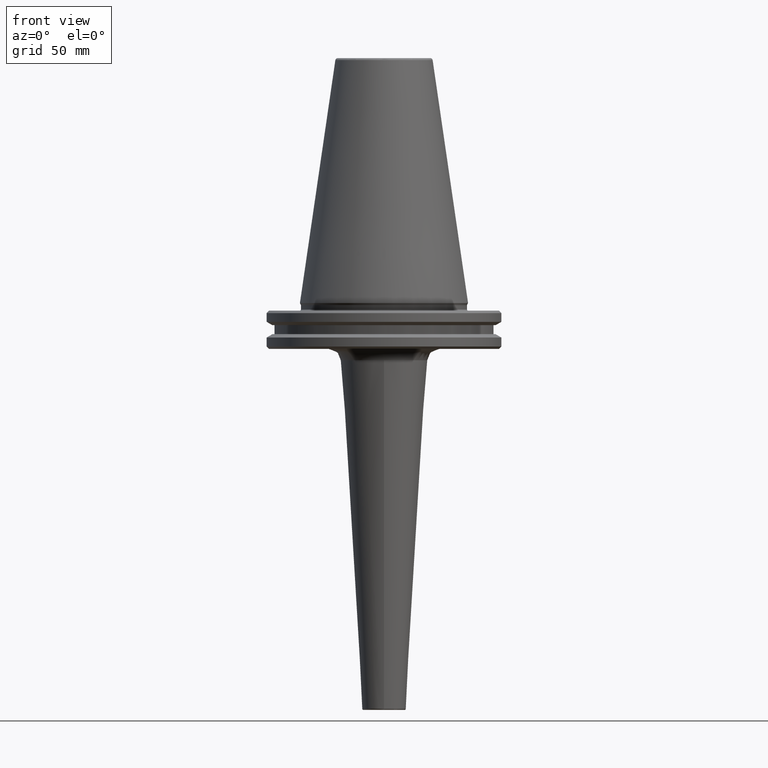
[diagram: clean part render]
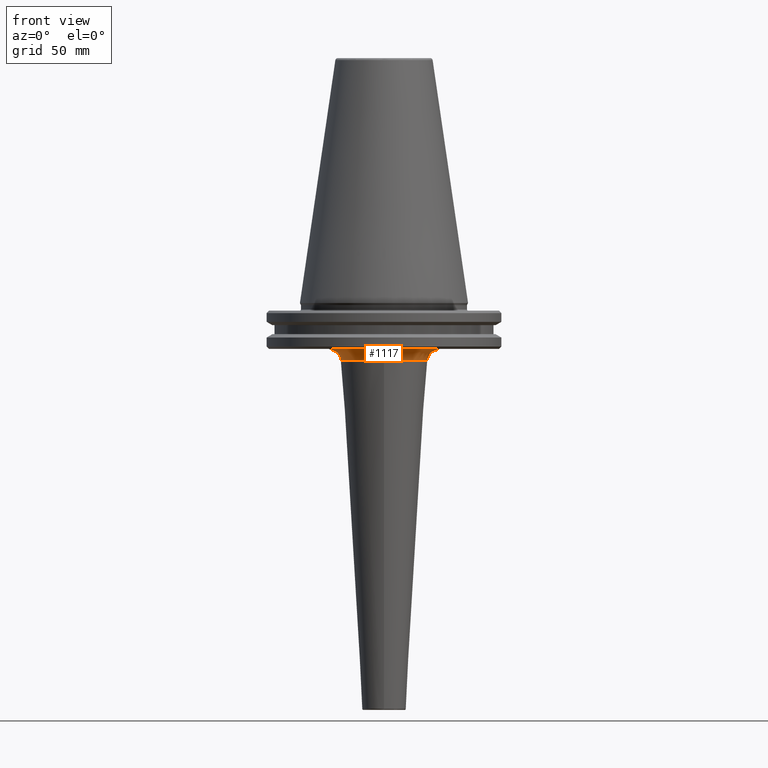
[diagram: same view with one face highlighted and labeled with its STEP entity id]
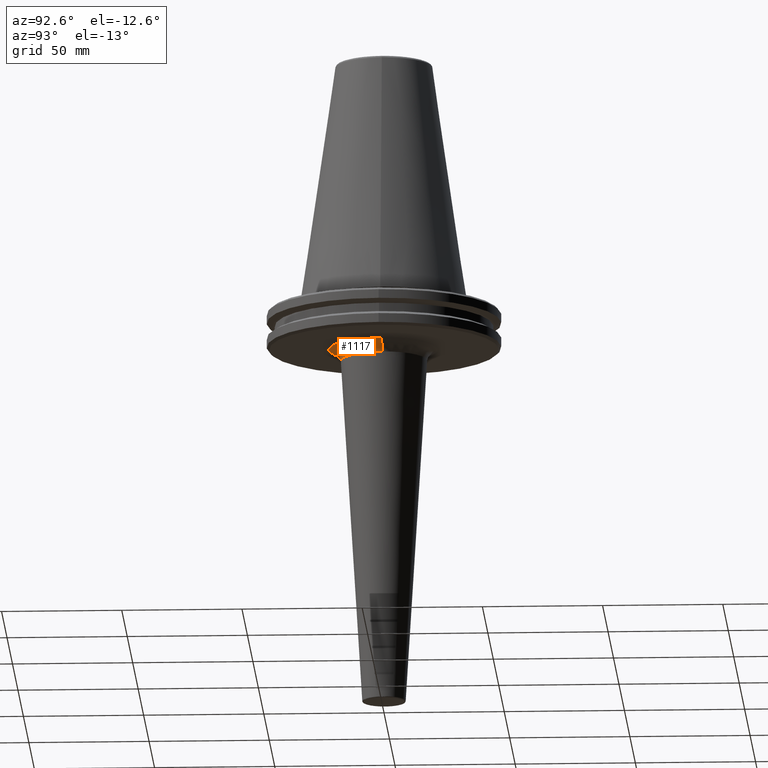
[diagram: same view with one face highlighted and labeled with its STEP entity id]
A machine part, front view. The second image highlights one B-rep face of the part: STEP entity #1117.
A second angle (auxiliary view) of the same face is appended — the face is thin or edge-on in the first view.
In plain terms, the highlighted face is a freeform B-spline surface patch.
Its self-contained STEP definition (entity closure, byte-faithful):
#10 = VERTEX_POINT ( 'NONE', #586 ) ;
#61 = CARTESIAN_POINT ( 'NONE',  ( -17.96064450554360500, -4.399089160867495000E-015, -23.79225126145506100 ) ) ;
#63 = VERTEX_POINT ( 'NONE', #1027 ) ;
#65 = CARTESIAN_POINT ( 'NONE',  ( -17.96064450554359500, -35.92128901108721100, -23.79225126145506100 ) ) ;
#68 = CARTESIAN_POINT ( 'NONE',  ( 17.96064450554360900, -35.92128901108720400, -23.79225126145506100 ) ) ;
#73 = CARTESIAN_POINT ( 'NONE',  ( 17.96064450554360500, 2.199544580433747500E-015, -23.79225126145506100 ) ) ;
#83 = CARTESIAN_POINT ( 'NONE',  ( -18.13223631604952100, -4.441117033166689200E-015, -21.00968136135912400 ) ) ;
#86 = AXIS2_PLACEMENT_3D ( 'NONE', #1315, #1158, #1414 ) ;
#88 = CARTESIAN_POINT ( 'NONE',  ( -18.13223631604951400, -36.26447263209904300, -21.00968136135912400 ) ) ;
#91 = CARTESIAN_POINT ( 'NONE',  ( 18.13223631604952500, -36.26447263209904300, -21.00968136135912400 ) ) ;
#93 = CARTESIAN_POINT ( 'NONE',  ( 18.13223631604952100, 2.220558516583344600E-015, -21.00968136135912400 ) ) ;
#100 = CARTESIAN_POINT ( 'NONE',  ( -20.16330896281285600, -4.938586356305580100E-015, -19.10000000000001200 ) ) ;
#102 = ORIENTED_EDGE ( 'NONE', *, *, #1303, .F. ) ;
#104 = CARTESIAN_POINT ( 'NONE',  ( -20.16330896281284900, -40.32661792562572600, -19.10000000000001200 ) ) ;
#107 = CARTESIAN_POINT ( 'NONE',  ( 20.16330896281286300, -40.32661792562570500, -19.10000000000001200 ) ) ;
#110 = CARTESIAN_POINT ( 'NONE',  ( 20.16330896281285600, 2.469293178152790000E-015, -19.10000000000001200 ) ) ;
#111 = CARTESIAN_POINT ( 'NONE',  ( -22.95116459005624100, -5.621414050383289400E-015, -19.10000000000000900 ) ) ;
#113 = CARTESIAN_POINT ( 'NONE',  ( -22.95116459005623000, -45.90232918011248100, -19.10000000000000900 ) ) ;
#117 = CARTESIAN_POINT ( 'NONE',  ( 22.95116459005624100, 2.810707025191644700E-015, -19.10000000000000900 ) ) ;
#124 = CARTESIAN_POINT ( 'NONE',  ( -17.96064450554360500, 0.0000000000000000000, -23.79225126145506100 ) ) ;
#125 = EDGE_CURVE ( 'NONE', #63, #1118, #417, .T. ) ;
#171 = FACE_OUTER_BOUND ( 'NONE', #1338, .T. ) ;
#256 =( BOUNDED_SURFACE ( )  B_SPLINE_SURFACE ( 3, 3, ( 
 ( #117, #589, #113, #111 ),
 ( #110, #107, #104, #100 ),
 ( #93, #91, #88, #83 ),
 ( #73, #68, #65, #61 ) ),
 .UNSPECIFIED., .F., .F., .F. ) 
 B_SPLINE_SURFACE_WITH_KNOTS ( ( 4, 4 ),
 ( 4, 4 ),
 ( 0.0000000000000000000, 1.000000000000000000 ),
 ( 0.0000000000000000000, 1.000000000000000000 ),
 .UNSPECIFIED. ) 
 GEOMETRIC_REPRESENTATION_ITEM ( )  RATIONAL_B_SPLINE_SURFACE ( (
 ( 1.000000000000000000, 0.3333333333333334300, 0.3333333333333334300, 1.000000000000000000),
 ( 0.8190286534006890900, 0.2730095511335631200, 0.2730095511335631200, 0.8190286534006890900),
 ( 0.8190286534006890900, 0.2730095511335631200, 0.2730095511335631200, 0.8190286534006890900),
 ( 1.000000000000000000, 0.3333333333333334300, 0.3333333333333334300, 1.000000000000000000) ) ) 
 REPRESENTATION_ITEM ( '' )  SURFACE ( )  );
#262 = EDGE_CURVE ( 'NONE', #1044, #1118, #708, .T. ) ;
#355 = CARTESIAN_POINT ( 'NONE',  ( 18.82368421279510400, -13.13378210870481200, -19.10000000000000900 ) ) ;
#368 = DIRECTION ( 'NONE',  ( 1.224646799147353200E-016, -1.000000000000000000, 0.0000000000000000000 ) ) ;
#417 = CIRCLE ( 'NONE', #644, 17.96064450554360500 ) ;
#432 = CARTESIAN_POINT ( 'NONE',  ( 21.26765401825243600, -8.628171966043813900, -19.10000000000000500 ) ) ;
#436 = CARTESIAN_POINT ( 'NONE',  ( 21.21288987432805200, -8.762778658821693200, -19.10000000000000900 ) ) ;
#441 = CARTESIAN_POINT ( 'NONE',  ( 21.08226123616082100, -9.075378606600635200, -19.10000000000000500 ) ) ;
#449 = AXIS2_PLACEMENT_3D ( 'NONE', #588, #368, #1040 ) ;
#457 = CARTESIAN_POINT ( 'NONE',  ( 22.30061106612713900, -5.448608081786472800, -19.10000000000000500 ) ) ;
#460 = CARTESIAN_POINT ( 'NONE',  ( 21.97264827199365900, -6.703377456493108800, -19.10000000000000100 ) ) ;
#461 = CARTESIAN_POINT ( 'NONE',  ( 21.61366093887734900, -7.756297966707802700, -19.10000000000000500 ) ) ;
#467 = CARTESIAN_POINT ( 'NONE',  ( 20.80962141711831800, -9.694649160680747000, -19.10000000000000500 ) ) ;
#478 = CARTESIAN_POINT ( 'NONE',  ( 21.30389243461373300, -8.538292996061470000, -19.10000000000000500 ) ) ;
#481 = CARTESIAN_POINT ( 'NONE',  ( 21.32260329363730700, -8.491446282456975000, -19.10000000000000500 ) ) ;
#484 = CARTESIAN_POINT ( 'NONE',  ( 12.23304086201432200, -19.41955077818169800, -19.10000000000000500 ) ) ;
#493 = CARTESIAN_POINT ( 'NONE',  ( 12.39649085263057100, -19.31560118635363200, -19.10000000000001200 ) ) ;
#504 = CARTESIAN_POINT ( 'NONE',  ( 22.53789176660468700, -4.336268098486404400, -19.10000000000000100 ) ) ;
#511 = CARTESIAN_POINT ( 'NONE',  ( 22.50683376621586300, -4.495997626411086600, -19.10000000000000900 ) ) ;
#520 = CARTESIAN_POINT ( 'NONE',  ( 22.44187852290166400, -4.814632866235773400, -19.10000000000000900 ) ) ;
#525 = CARTESIAN_POINT ( 'NONE',  ( 22.56401208992675600, -4.197829468767965400, -19.10000000000000900 ) ) ;
#526 = CARTESIAN_POINT ( 'NONE',  ( 22.55950144398814000, -4.222008853868542700, -19.10000000000000500 ) ) ;
#535 = ORIENTED_EDGE ( 'NONE', *, *, #1484, .F. ) ;
#542 = CARTESIAN_POINT ( 'NONE',  ( 22.55089813364243100, -4.267724320516039800, -19.10000000000000100 ) ) ;
#557 = CARTESIAN_POINT ( 'NONE',  ( 22.95116459005624100, 2.810707025191644700E-015, -19.10000000000000500 ) ) ;
#560 = CARTESIAN_POINT ( 'NONE',  ( 22.95116459005624400, -1.403983749754345300, -19.10000000000000100 ) ) ;
#565 = CARTESIAN_POINT ( 'NONE',  ( 17.58169013075478700, -14.79011342238108100, -19.10000000000000500 ) ) ;
#567 = CARTESIAN_POINT ( 'NONE',  ( 22.82344417764239000, -2.796071738161106000, -19.10000000000000900 ) ) ;
#569 = CARTESIAN_POINT ( 'NONE',  ( 18.42351643596050400, -13.69717782439002100, -19.10000000000000900 ) ) ;
#583 = CARTESIAN_POINT ( 'NONE',  ( 19.10112140129457000, -12.72450482169813300, -19.10000000000000900 ) ) ;
#586 = CARTESIAN_POINT ( 'NONE',  ( 22.95116459005624100, 2.810707025191644700E-015, -19.10000000000000500 ) ) ;
#588 = CARTESIAN_POINT ( 'NONE',  ( 22.95116459005624100, 2.810707025191644700E-015, -24.10000000000000900 ) ) ;
#589 = CARTESIAN_POINT ( 'NONE',  ( 22.95116459005624400, -45.90232918011247400, -19.10000000000000900 ) ) ;
#598 = CARTESIAN_POINT ( 'NONE',  ( -22.90326943540104300, -1.750207678794178700, -19.10000000000000900 ) ) ;
#605 = CARTESIAN_POINT ( 'NONE',  ( -22.76357523432338300, -2.965760245328614700, -19.10000000000000500 ) ) ;
#606 = CARTESIAN_POINT ( 'NONE',  ( -6.703377456441685900, -21.97264827200558900, -19.10000000000000500 ) ) ;
#618 = DIRECTION ( 'NONE',  ( -1.000000000000000000, 0.0000000000000000000, 0.0000000000000000000 ) ) ;
#623 = CARTESIAN_POINT ( 'NONE',  ( -22.95116459005624100, 0.0000000000000000000, -19.10000000000000500 ) ) ;
#625 = CARTESIAN_POINT ( 'NONE',  ( 8.361633616810623300, -21.37384315560055700, -19.10000000000000100 ) ) ;
#627 = DIRECTION ( 'NONE',  ( 0.0000000000000000000, 0.0000000000000000000, -1.000000000000000000 ) ) ;
#635 = CARTESIAN_POINT ( 'NONE',  ( 0.0000000000000000000, 0.0000000000000000000, -23.79225126145506100 ) ) ;
#644 = AXIS2_PLACEMENT_3D ( 'NONE', #837, #867, #880 ) ;
#649 = CARTESIAN_POINT ( 'NONE',  ( 17.96064450554360500, 2.505125802812696300E-015, -23.79225126145506100 ) ) ;
#684 = CARTESIAN_POINT ( 'NONE',  ( 15.10877690595455800, -17.34901876925437800, -19.10000000000000900 ) ) ;
#695 = CARTESIAN_POINT ( 'NONE',  ( 16.78899772365872100, -15.66887679200882700, -19.10000000000000900 ) ) ;
#699 = CARTESIAN_POINT ( 'NONE',  ( 12.47623258490453000, -19.26419666505740800, -19.10000000000000900 ) ) ;
#703 = CARTESIAN_POINT ( 'NONE',  ( -17.34901876925783200, -15.10877690595112100, -19.10000000000000900 ) ) ;
#706 = CARTESIAN_POINT ( 'NONE',  ( -14.79011342237806100, -17.58169013075780600, -19.10000000000000100 ) ) ;
#708 = CIRCLE ( 'NONE', #86, 5.000000000000000900 ) ;
#711 = CARTESIAN_POINT ( 'NONE',  ( 13.88499760037783100, -18.34322292407961900, -19.10000000000001200 ) ) ;
#720 = ORIENTED_EDGE ( 'NONE', *, *, #125, .F. ) ;
#721 = CARTESIAN_POINT ( 'NONE',  ( 11.40711371938972000, -19.92245689810569700, -19.10000000000000500 ) ) ;
#726 = CARTESIAN_POINT ( 'NONE',  ( -4.336268098480179100, -22.53789176660613300, -19.10000000000000900 ) ) ;
#730 = CARTESIAN_POINT ( 'NONE',  ( -22.43261073815926200, -4.908002801507544500, -19.10000000000000100 ) ) ;
#735 = CARTESIAN_POINT ( 'NONE',  ( -22.17753139951493700, -5.990799216055996200, -19.10000000000000500 ) ) ;
#738 = CARTESIAN_POINT ( 'NONE',  ( -22.58381249565984900, -4.089965642567158000, -19.09999999999999800 ) ) ;
#746 = CARTESIAN_POINT ( 'NONE',  ( -21.78895560860612700, -7.228140979901266600, -19.10000000000000100 ) ) ;
#751 = CARTESIAN_POINT ( 'NONE',  ( 18.99073925091672500, -12.88869939126336000, -19.09999999999999800 ) ) ;
#752 = CARTESIAN_POINT ( 'NONE',  ( -21.57192190586245700, -7.840331681875263700, -19.10000000000000500 ) ) ;
#764 = CARTESIAN_POINT ( 'NONE',  ( -22.59550564865184100, -4.025227109034505100, -19.10000000000000900 ) ) ;
#770 = CARTESIAN_POINT ( 'NONE',  ( -22.57223437202267400, -4.153397126586185100, -19.10000000000000900 ) ) ;
#774 = CARTESIAN_POINT ( 'NONE',  ( -22.57595469684924400, -4.133119030048777500, -19.10000000000000900 ) ) ;
#780 = CARTESIAN_POINT ( 'NONE',  ( 19.15698052161579700, -12.64022724778925700, -19.10000000000000500 ) ) ;
#796 = CARTESIAN_POINT ( 'NONE',  ( -22.95116459005624100, 0.0000000000000000000, -19.10000000000000500 ) ) ;
#809 = CARTESIAN_POINT ( 'NONE',  ( 1.750054318611656600, -22.90329781142991900, -19.10000000000000500 ) ) ;
#812 = CARTESIAN_POINT ( 'NONE',  ( 0.7017264702623596800, -22.95118080492989100, -19.10000000000000500 ) ) ;
#833 = CARTESIAN_POINT ( 'NONE',  ( -1.403452940524733100, -22.95113216030894800, -19.10000000000000900 ) ) ;
#837 = CARTESIAN_POINT ( 'NONE',  ( 0.0000000000000000000, 0.0000000000000000000, -23.79225126145506100 ) ) ;
#842 = CARTESIAN_POINT ( 'NONE',  ( -22.62213485573227700, -3.874111364620044900, -19.10000000000000500 ) ) ;
#844 = CARTESIAN_POINT ( 'NONE',  ( -2.796247050002423200, -22.82341173157867300, -19.10000000000000500 ) ) ;
#849 = CARTESIAN_POINT ( 'NONE',  ( -4.197826729520444100, -22.56401259689650400, -19.10000000000000900 ) ) ;
#851 = CARTESIAN_POINT ( 'NONE',  ( -21.45771860266830800, -8.144806987875096400, -19.10000000000000500 ) ) ;
#859 = CARTESIAN_POINT ( 'NONE',  ( 2.965645225191724200, -22.76359651634505700, -19.10000000000000500 ) ) ;
#866 = CARTESIAN_POINT ( 'NONE',  ( 3.571576116024900200, -22.67278641813555900, -19.10000000000000900 ) ) ;
#867 = DIRECTION ( 'NONE',  ( 0.0000000000000000000, 0.0000000000000000000, -1.000000000000000000 ) ) ;
#872 = CARTESIAN_POINT ( 'NONE',  ( 19.63435147913140400, -11.91009205472434300, -19.10000000000000500 ) ) ;
#874 = CARTESIAN_POINT ( 'NONE',  ( -21.05431439692344500, -9.169180467967418500, -19.10000000000000500 ) ) ;
#880 = DIRECTION ( 'NONE',  ( -1.000000000000000000, 0.0000000000000000000, 0.0000000000000000000 ) ) ;
#882 = CARTESIAN_POINT ( 'NONE',  ( 3.874075420827265000, -22.62214150636404100, -19.09999999999999800 ) ) ;
#889 = CARTESIAN_POINT ( 'NONE',  ( 4.025208538074901200, -22.59550908481159600, -19.10000000000000500 ) ) ;
#895 = CARTESIAN_POINT ( 'NONE',  ( 4.089954902219552000, -22.58381448293197400, -19.10000000000000500 ) ) ;
#904 = CARTESIAN_POINT ( 'NONE',  ( 4.133113595689628100, -22.57595570236143000, -19.10000000000000500 ) ) ;
#908 = CARTESIAN_POINT ( 'NONE',  ( -20.57404412186219400, -10.22377647744823300, -19.10000000000000500 ) ) ;
#910 = CARTESIAN_POINT ( 'NONE',  ( 4.153397126585704600, -22.57223437202291200, -19.10000000000000100 ) ) ;
#915 = CIRCLE ( 'NONE', #1376, 17.96064450554360500 ) ;
#925 = CARTESIAN_POINT ( 'NONE',  ( 20.21881160820118200, -10.90947290292986000, -19.10000000000000500 ) ) ;
#927 = CARTESIAN_POINT ( 'NONE',  ( 4.908002801522822100, -22.43261073815126100, -19.10000000000000500 ) ) ;
#934 = CARTESIAN_POINT ( 'NONE',  ( 5.990799216082736600, -22.17753139950092500, -19.10000000000000500 ) ) ;
#945 = CARTESIAN_POINT ( 'NONE',  ( -19.26419666505597000, -12.47623258490597000, -19.10000000000000500 ) ) ;
#949 = CARTESIAN_POINT ( 'NONE',  ( -12.88869939126257900, -18.99073925091753900, -19.10000000000000500 ) ) ;
#951 = CARTESIAN_POINT ( 'NONE',  ( -12.72450482169772100, -19.10112140129499300, -19.10000000000000500 ) ) ;
#957 = CARTESIAN_POINT ( 'NONE',  ( -19.92245689810674800, -11.40711371938032300, -19.10000000000000500 ) ) ;
#959 = CARTESIAN_POINT ( 'NONE',  ( -12.64022724779198200, -19.15698052161410200, -19.10000000000000500 ) ) ;
#982 = CARTESIAN_POINT ( 'NONE',  ( -18.34322292410253800, -13.88499760035491100, -19.10000000000000500 ) ) ;
#983 = CARTESIAN_POINT ( 'NONE',  ( -11.91009205470261100, -19.63435147914503900, -19.10000000000000500 ) ) ;
#986 = CARTESIAN_POINT ( 'NONE',  ( -10.90947290289181700, -20.21881160822505300, -19.10000000000000900 ) ) ;
#992 = B_SPLINE_CURVE_WITH_KNOTS ( 'NONE', 3,
 ( #796, #1278, #598, #605, #1505, #842, #764, #738, #774, #770, #730, #735, #746, #752, #851, #1029, #1042, #1015, #874, #908, #957, #1067, #1083, #1397, #945, #982, #703, #1213, #706, #1210, #1217, #949, #951, #959, #983, #986, #1001, #1006, #1023, #1046, #1056, #1078, #1093, #606, #1104, #1137, #1154, #726, #1176, #1196, #849, #844, #833, #812, #809, #859, #866, #882, #889, #895, #904, #910, #927, #934, #1493, #1427, #1310, #1294, #625, #1512, #1521, #1533, #721, #1426, #484, #493, #699, #711, #684, #695, #565, #569, #355, #751, #583, #780, #872, #925, #467, #441, #436, #432, #478, #481, #461, #460, #457, #520, #511, #504, #542, #526, #525, #567, #560, #557 ),
 .UNSPECIFIED., .F., .F.,
 ( 4, 1, 1, 1, 1, 1, 2, 2, 1, 1, 1, 1, 2, 2, 1, 1, 1, 2, 2, 2, 1, 1, 1, 2, 2, 1, 1, 1, 1, 2, 2, 1, 1, 1, 1, 1, 2, 2, 2, 1, 1, 1, 1, 1, 2, 2, 1, 1, 1, 1, 2, 2, 1, 1, 1, 2, 2, 2, 1, 1, 1, 2, 2, 1, 1, 1, 1, 2, 2, 1, 1, 1, 1, 1, 2, 2, 4 ),
 ( 0.0000000000000000000, 0.03125000000000020800, 0.04687500000000031200, 0.05468750000000034000, 0.05859375000000034700, 0.06054687500000033300, 0.06152343750000036100, 0.06250000000000038900, 0.09375000000000167900, 0.1093750000000023300, 0.1171875000000026400, 0.1210937500000027300, 0.1230468750000027200, 0.1250000000000027200, 0.1562500000000020500, 0.1718750000000016900, 0.1796875000000015300, 0.1835937500000014700, 0.1875000000000014200, 0.2500000000000012800, 0.2812500000000013300, 0.2968750000000013300, 0.3046875000000013300, 0.3085937500000013300, 0.3125000000000013300, 0.3437500000000013300, 0.3593750000000013900, 0.3671875000000013900, 0.3710937500000014400, 0.3730468750000014400, 0.3750000000000014400, 0.4062500000000007800, 0.4218750000000004400, 0.4296875000000002800, 0.4335937500000001700, 0.4355468750000001700, 0.4365234375000001100, 0.4375000000000000600, 0.4999999999999975600, 0.5312499999999963400, 0.5468749999999956700, 0.5546874999999953400, 0.5585937499999952300, 0.5605468749999951200, 0.5615234374999951200, 0.5624999999999951200, 0.5937499999999957800, 0.6093749999999961100, 0.6171874999999962300, 0.6210937499999962300, 0.6230468749999962300, 0.6249999999999962300, 0.6562499999999968900, 0.6718749999999972200, 0.6796874999999974500, 0.6835937499999975600, 0.6874999999999976700, 0.7499999999999995600, 0.7812500000000005600, 0.7968750000000010000, 0.8046875000000011100, 0.8085937500000013300, 0.8125000000000014400, 0.8437500000000021100, 0.8593750000000024400, 0.8671875000000025500, 0.8710937500000025500, 0.8730468750000025500, 0.8750000000000025500, 0.9062500000000011100, 0.9218750000000003300, 0.9296875000000000000, 0.9335937499999997800, 0.9355468749999996700, 0.9365234374999996700, 0.9374999999999996700, 1.000000000000000000 ),
 .UNSPECIFIED. ) ;
#1001 = CARTESIAN_POINT ( 'NONE',  ( -9.694649160652220500, -20.80962141713622100, -19.10000000000000900 ) ) ;
#1006 = CARTESIAN_POINT ( 'NONE',  ( -9.075378606583990800, -21.08226123617125900, -19.10000000000000100 ) ) ;
#1015 = CARTESIAN_POINT ( 'NONE',  ( -21.35756245250942700, -8.403141126128245400, -19.10000000000000900 ) ) ;
#1023 = CARTESIAN_POINT ( 'NONE',  ( -8.762778658812779400, -21.21288987433363700, -19.10000000000000100 ) ) ;
#1027 = CARTESIAN_POINT ( 'NONE',  ( 0.0000000000000000000, -17.96064450554360500, -23.79225126145506100 ) ) ;
#1029 = CARTESIAN_POINT ( 'NONE',  ( -21.40755580448030700, -8.274949252234920400, -19.09999999999999800 ) ) ;
#1039 = VERTEX_POINT ( 'NONE', #649 ) ;
#1040 = DIRECTION ( 'NONE',  ( 1.000000000000000000, 1.224646799147353500E-016, 0.0000000000000000000 ) ) ;
#1042 = CARTESIAN_POINT ( 'NONE',  ( -21.37384315560154800, -8.361633616808749300, -19.10000000000000100 ) ) ;
#1044 = VERTEX_POINT ( 'NONE', #623 ) ;
#1046 = CARTESIAN_POINT ( 'NONE',  ( -8.628171966038591400, -21.26765401825571200, -19.10000000000000500 ) ) ;
#1056 = CARTESIAN_POINT ( 'NONE',  ( -8.538292996058796500, -21.30389243461541300, -19.10000000000000500 ) ) ;
#1067 = CARTESIAN_POINT ( 'NONE',  ( -19.57384531051636100, -11.98702614806415100, -19.10000000000000500 ) ) ;
#1078 = CARTESIAN_POINT ( 'NONE',  ( -8.491446282458813500, -21.32260329363688500, -19.10000000000000500 ) ) ;
#1083 = CARTESIAN_POINT ( 'NONE',  ( -19.41955077818205300, -12.23304086201102900, -19.10000000000000500 ) ) ;
#1093 = CARTESIAN_POINT ( 'NONE',  ( -7.756297966678415500, -21.61366093888416300, -19.10000000000000100 ) ) ;
#1104 = CARTESIAN_POINT ( 'NONE',  ( -5.448608081747901000, -22.30061106613608500, -19.10000000000000500 ) ) ;
#1117 = ADVANCED_FACE ( 'NONE', ( #171 ), #256, .F. ) ;
#1118 = VERTEX_POINT ( 'NONE', #124 ) ;
#1137 = CARTESIAN_POINT ( 'NONE',  ( -4.814632866213275800, -22.44187852290687200, -19.10000000000000500 ) ) ;
#1154 = CARTESIAN_POINT ( 'NONE',  ( -4.495997626399031300, -22.50683376621865500, -19.10000000000000500 ) ) ;
#1158 = DIRECTION ( 'NONE',  ( 0.0000000000000000000, 1.000000000000000000, 0.0000000000000000000 ) ) ;
#1176 = CARTESIAN_POINT ( 'NONE',  ( -4.267724320512439100, -22.55089813364326500, -19.10000000000000900 ) ) ;
#1196 = CARTESIAN_POINT ( 'NONE',  ( -4.222008853866721100, -22.55950144398855900, -19.10000000000001200 ) ) ;
#1199 = CIRCLE ( 'NONE', #449, 5.000000000000000900 ) ;
#1210 = CARTESIAN_POINT ( 'NONE',  ( -13.69717782438775600, -18.42351643596276400, -19.10000000000000500 ) ) ;
#1213 = CARTESIAN_POINT ( 'NONE',  ( -15.66887679200710100, -16.78899772366045100, -19.10000000000000500 ) ) ;
#1216 = ORIENTED_EDGE ( 'NONE', *, *, #262, .T. ) ;
#1217 = CARTESIAN_POINT ( 'NONE',  ( -13.13378210870350100, -18.82368421279642200, -19.10000000000000900 ) ) ;
#1278 = CARTESIAN_POINT ( 'NONE',  ( -22.95116459005624100, -0.7018141046523762600, -19.10000000000000500 ) ) ;
#1294 = CARTESIAN_POINT ( 'NONE',  ( 8.274949252238590300, -21.40755580447839200, -19.10000000000000500 ) ) ;
#1303 = EDGE_CURVE ( 'NONE', #1039, #63, #915, .T. ) ;
#1310 = CARTESIAN_POINT ( 'NONE',  ( 8.144806987881366900, -21.45771860266501500, -19.10000000000000900 ) ) ;
#1315 = CARTESIAN_POINT ( 'NONE',  ( -22.95116459005624100, 0.0000000000000000000, -24.10000000000000900 ) ) ;
#1338 = EDGE_LOOP ( 'NONE', ( #535, #1378, #1216, #720, #102 ) ) ;
#1376 = AXIS2_PLACEMENT_3D ( 'NONE', #635, #627, #618 ) ;
#1378 = ORIENTED_EDGE ( 'NONE', *, *, #1558, .F. ) ;
#1397 = CARTESIAN_POINT ( 'NONE',  ( -19.31560118635382400, -12.39649085262884200, -19.10000000000000500 ) ) ;
#1414 = DIRECTION ( 'NONE',  ( -1.000000000000000000, 0.0000000000000000000, 0.0000000000000000000 ) ) ;
#1426 = CARTESIAN_POINT ( 'NONE',  ( 11.98702614806962600, -19.57384531051574700, -19.10000000000000100 ) ) ;
#1427 = CARTESIAN_POINT ( 'NONE',  ( 7.840331681886961100, -21.57192190585633500, -19.10000000000000500 ) ) ;
#1484 = EDGE_CURVE ( 'NONE', #10, #1039, #1199, .T. ) ;
#1493 = CARTESIAN_POINT ( 'NONE',  ( 7.228140979921330500, -21.78895560859562200, -19.10000000000000500 ) ) ;
#1505 = CARTESIAN_POINT ( 'NONE',  ( -22.67277400362293300, -3.571643211104750500, -19.10000000000000500 ) ) ;
#1512 = CARTESIAN_POINT ( 'NONE',  ( 8.403141126127797700, -21.35756245250948000, -19.10000000000000500 ) ) ;
#1521 = CARTESIAN_POINT ( 'NONE',  ( 9.169180467974579000, -21.05431439692264900, -19.10000000000000900 ) ) ;
#1533 = CARTESIAN_POINT ( 'NONE',  ( 10.22377647746076700, -20.57404412186079400, -19.10000000000000500 ) ) ;
#1558 = EDGE_CURVE ( 'NONE', #1044, #10, #992, .T. ) ;